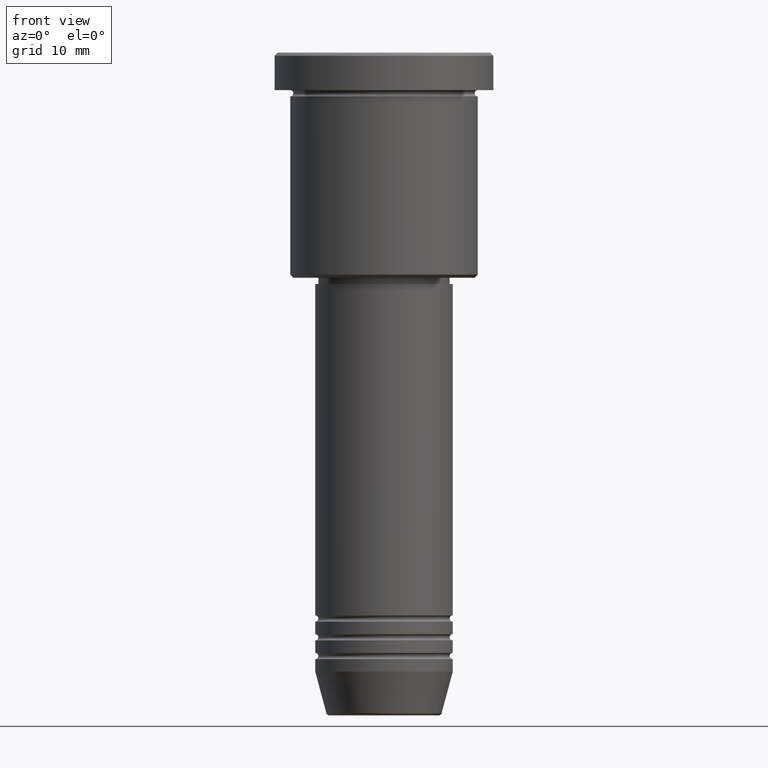
[diagram: clean part render]
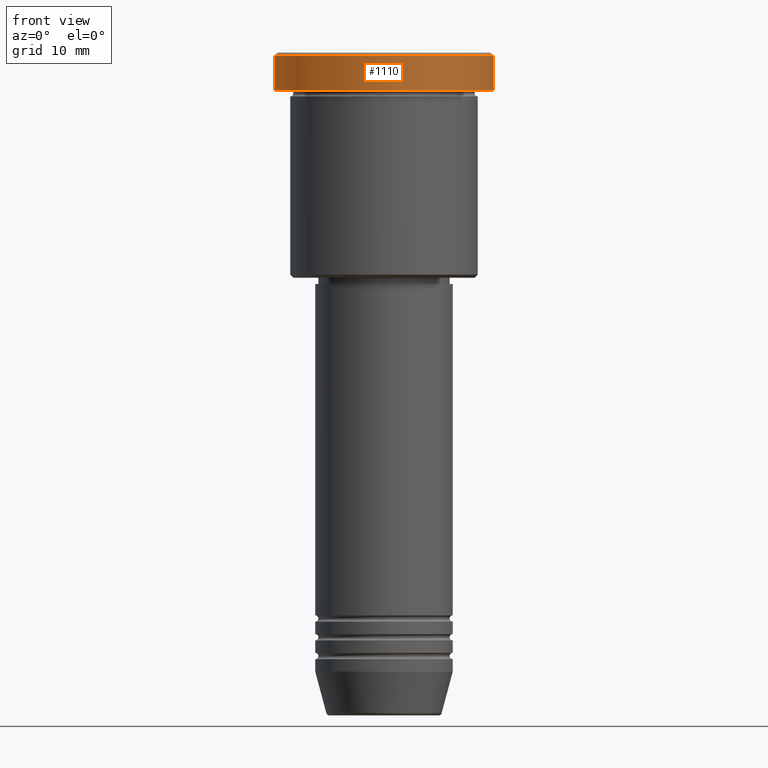
[diagram: same view with one face highlighted and labeled with its STEP entity id]
A machine part, front view. The second image highlights one B-rep face of the part: STEP entity #1110.
In plain terms, the highlighted cylindrical surface (partial cylindrical patch) has radius 17.5 mm, axis along (-0, -0, 1).
Its self-contained STEP definition (entity closure, byte-faithful):
#116 = FACE_OUTER_BOUND ( 'NONE', #861, .T. ) ;
#129 = AXIS2_PLACEMENT_3D ( 'NONE', #769, #962, #498 ) ;
#143 = CARTESIAN_POINT ( 'NONE',  ( 17.50000000000000000, 0.000000000000000000, -0.5000000000000280886 ) ) ;
#190 = DIRECTION ( 'NONE',  ( 1.000000000000000000, 0.000000000000000000, 0.000000000000000000 ) ) ;
#207 = CYLINDRICAL_SURFACE ( 'NONE', #643, 17.50000000000000000 ) ;
#272 = VERTEX_POINT ( 'NONE', #143 ) ;
#301 = VERTEX_POINT ( 'NONE', #783 ) ;
#366 = EDGE_CURVE ( 'NONE', #798, #465, #519, .T. ) ;
#388 = EDGE_CURVE ( 'NONE', #272, #465, #1060, .T. ) ;
#439 = DIRECTION ( 'NONE',  ( -0.000000000000000000, -0.000000000000000000, 1.000000000000000000 ) ) ;
#465 = VERTEX_POINT ( 'NONE', #1165 ) ;
#473 = DIRECTION ( 'NONE',  ( -0.000000000000000000, -0.000000000000000000, 1.000000000000000000 ) ) ;
#498 = DIRECTION ( 'NONE',  ( 1.000000000000000000, 0.000000000000000000, 0.000000000000000000 ) ) ;
#508 = LINE ( 'NONE', #585, #918 ) ;
#519 = LINE ( 'NONE', #885, #713 ) ;
#547 = ORIENTED_EDGE ( 'NONE', *, *, #366, .F. ) ;
#585 = CARTESIAN_POINT ( 'NONE',  ( 17.50000000000000000, 0.000000000000000000, 0.000000000000000000 ) ) ;
#621 = CIRCLE ( 'NONE', #715, 17.50000000000000000 ) ;
#640 = ORIENTED_EDGE ( 'NONE', *, *, #1157, .T. ) ;
#643 = AXIS2_PLACEMENT_3D ( 'NONE', #1183, #473, #839 ) ;
#650 = ORIENTED_EDGE ( 'NONE', *, *, #388, .T. ) ;
#680 = DIRECTION ( 'NONE',  ( -0.000000000000000000, -0.000000000000000000, 1.000000000000000000 ) ) ;
#713 = VECTOR ( 'NONE', #797, 1000.000000000000000 ) ;
#715 = AXIS2_PLACEMENT_3D ( 'NONE', #899, #439, #190 ) ;
#769 = CARTESIAN_POINT ( 'NONE',  ( 0.000000000000000000, 0.000000000000000000, -0.5000000000000280886 ) ) ;
#783 = CARTESIAN_POINT ( 'NONE',  ( 17.50000000000000000, 0.000000000000000000, -5.999999999999995559 ) ) ;
#797 = DIRECTION ( 'NONE',  ( -0.000000000000000000, -0.000000000000000000, 1.000000000000000000 ) ) ;
#798 = VERTEX_POINT ( 'NONE', #1122 ) ;
#839 = DIRECTION ( 'NONE',  ( 1.000000000000000000, 0.000000000000000000, 0.000000000000000000 ) ) ;
#861 = EDGE_LOOP ( 'NONE', ( #547, #1176, #640, #650 ) ) ;
#885 = CARTESIAN_POINT ( 'NONE',  ( -17.50000000000000000, 2.143131898507868248E-15, 0.000000000000000000 ) ) ;
#899 = CARTESIAN_POINT ( 'NONE',  ( 0.000000000000000000, 0.000000000000000000, -5.999999999999995559 ) ) ;
#918 = VECTOR ( 'NONE', #680, 1000.000000000000000 ) ;
#962 = DIRECTION ( 'NONE',  ( 0.000000000000000000, 0.000000000000000000, -1.000000000000000000 ) ) ;
#987 = EDGE_CURVE ( 'NONE', #798, #301, #621, .T. ) ;
#1060 = CIRCLE ( 'NONE', #129, 17.50000000000000000 ) ;
#1110 = ADVANCED_FACE ( 'NONE', ( #116 ), #207, .T. ) ;
#1122 = CARTESIAN_POINT ( 'NONE',  ( -17.50000000000000000, 2.143131898507868248E-15, -5.999999999999995559 ) ) ;
#1157 = EDGE_CURVE ( 'NONE', #301, #272, #508, .T. ) ;
#1165 = CARTESIAN_POINT ( 'NONE',  ( -17.50000000000000000, 2.143131898507868248E-15, -0.5000000000000280886 ) ) ;
#1176 = ORIENTED_EDGE ( 'NONE', *, *, #987, .T. ) ;
#1183 = CARTESIAN_POINT ( 'NONE',  ( 0.000000000000000000, 0.000000000000000000, 0.000000000000000000 ) ) ;